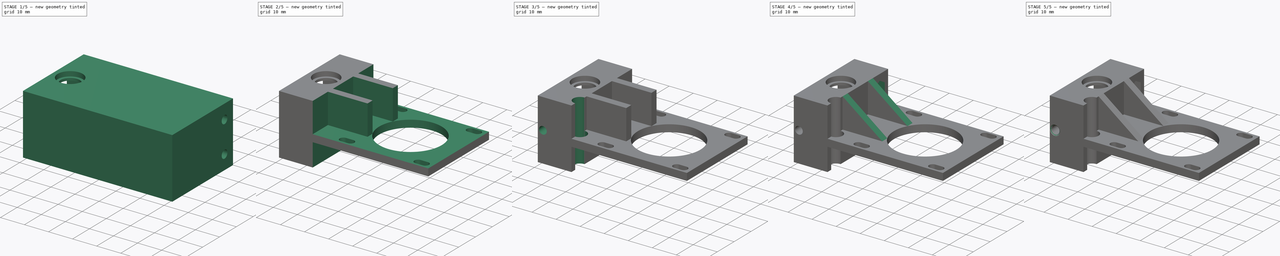
[diagram: build sequence overview — one tinted view per stage of 5, left to right]
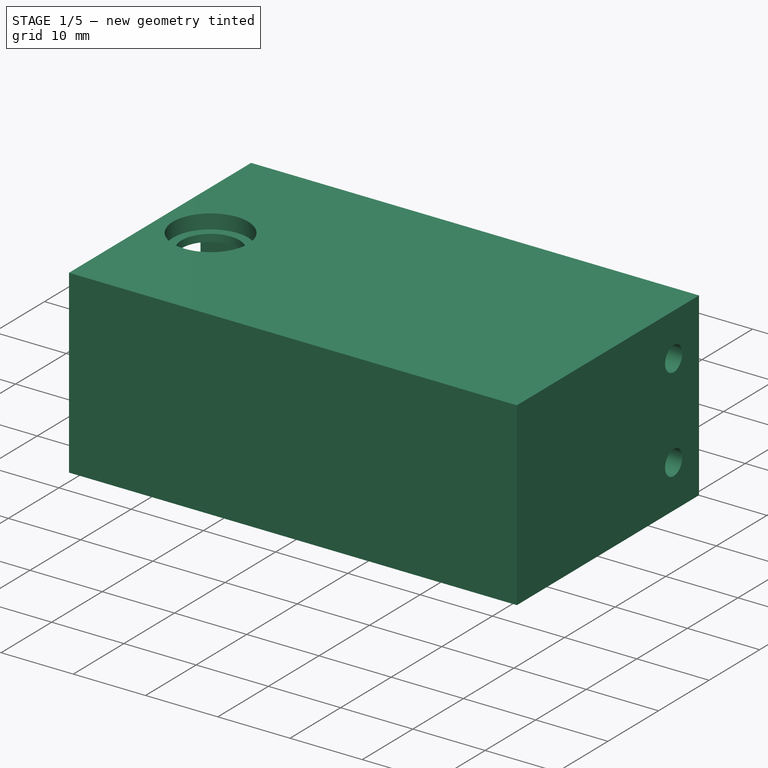
[diagram: stage 1 of 5 — iso view after this stage's code; geometry added in this stage tinted green]
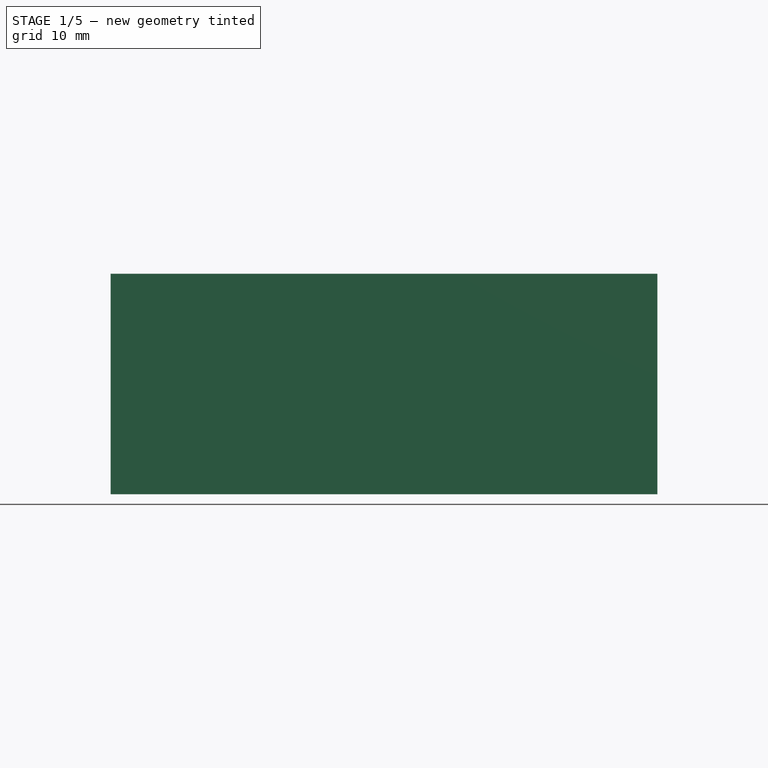
[diagram: stage 1 of 5 — front view after this stage's code; geometry added in this stage tinted green]
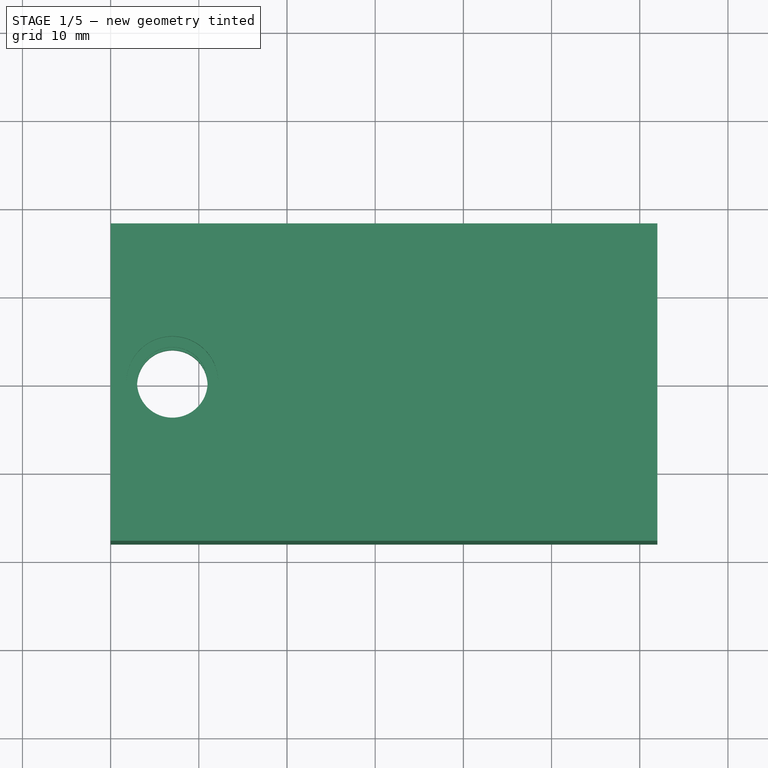
[diagram: stage 1 of 5 — top view after this stage's code; geometry added in this stage tinted green]
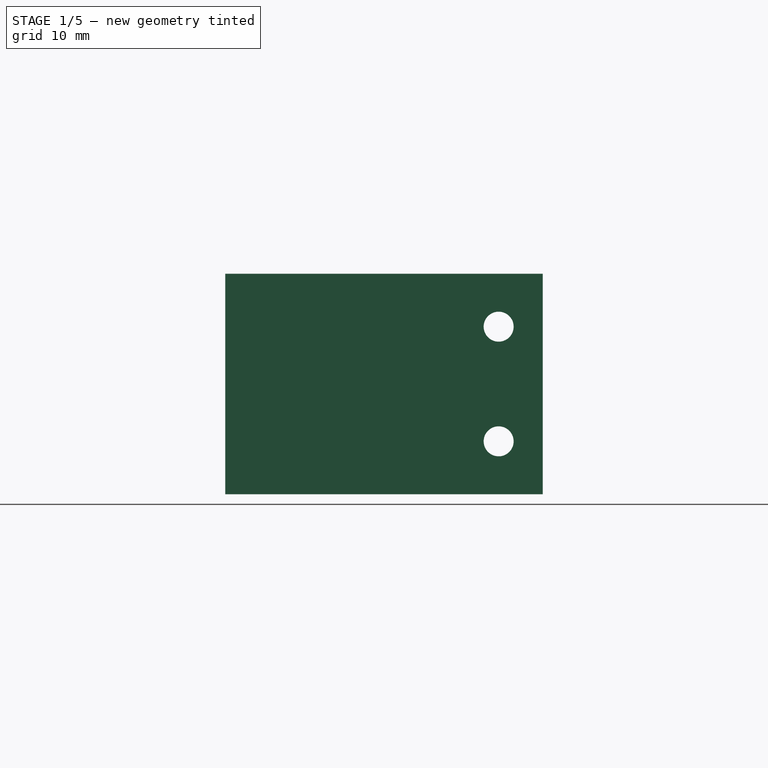
[diagram: stage 1 of 5 — right view after this stage's code; geometry added in this stage tinted green]
FCSTD DOCUMENT  (FreeCAD 0.18R13661 (Git))
Label: Base_623zz+M3
License: All rights reserved
LicenseURL: http://en.wikipedia.org/wiki/All_rights_reserved
objects: Sketcher::SketchObject×16, PartDesign::Pocket×13, PartDesign::Plane×12, PartDesign::Chamfer×4, PartDesign::Pad×3, PartDesign::Body×1
note: 65 computed .brp shape members not serialized (recipe doc carries the construction recipe); baked Part::Feature solids carry a one-line shape summary decoded from their .brp

FEATURE [Sketcher::SketchObject] Sketch  label="BaseSketch"
  AttachmentOffset = pos=(0,0,0) rot=(0,0,1;1.5708rad)
  MapMode = 5
  Placement = pos=(0,0,0) rot=(0.707107,0,0.707107;3.14159rad)
  Support = -> [YZ_Plane]
  sketch-geometry (12):
    g0: Circle [constr] CenterX=0 CenterY=0 CenterZ=0 NormalX=0 NormalY=0 NormalZ=1 AngleXU=0 Radius=21.9146
    g1: LineSegment StartX=-12.5 StartY=18 StartZ=0 EndX=-12.5 EndY=0 EndZ=0
    g2: LineSegment StartX=-12.5 StartY=0 StartZ=0 EndX=-12.5 EndY=-18 EndZ=0
    g3: LineSegment StartX=12.5 StartY=-18 StartZ=0 EndX=12.5 EndY=0 EndZ=0
    g4: LineSegment StartX=12.5 StartY=0 StartZ=0 EndX=12.5 EndY=18 EndZ=0
    g5: LineSegment StartX=-12.5 StartY=18 StartZ=0 EndX=0 EndY=18 EndZ=0
    g6: LineSegment StartX=0 StartY=18 StartZ=0 EndX=12.5 EndY=18 EndZ=0
    g7: LineSegment StartX=12.5 StartY=-18 StartZ=0 EndX=0 EndY=-18 EndZ=0
    g8: LineSegment StartX=0 StartY=-18 StartZ=0 EndX=-12.5 EndY=-18 EndZ=0
    g9: Circle [constr] CenterX=0 CenterY=0 CenterZ=0 NormalX=0 NormalY=0 NormalZ=1 AngleXU=0 Radius=14.5344
    g10: Circle CenterX=6.5 CenterY=-13 CenterZ=0 NormalX=0 NormalY=0 NormalZ=1 AngleXU=0 Radius=1.7
    g11: Circle CenterX=-6.5 CenterY=-13 CenterZ=0 NormalX=0 NormalY=0 NormalZ=1 AngleXU=0 Radius=1.7
  constraints (34):
    c: Coincident(g0,g-1)
    c: PointOnObject(g1,g0)
    c: PointOnObject(g1,g-1)
    c: Coincident(g2,g1)
    c: PointOnObject(g2,g0)
    c: PointOnObject(g3,g0)
    c: PointOnObject(g3,g-1)
    c: Coincident(g4,g3)
    c: PointOnObject(g4,g0)
    c: Coincident(g5,g1)
    c: PointOnObject(g5,g-2)
    c: Coincident(g6,g5)
    c: Coincident(g6,g4)
    c: Coincident(g7,g3)
    c: PointOnObject(g7,g-2)
    c: Coincident(g8,g7)
    c: Coincident(g8,g2)
    c: Vertical(g1)
    c: Vertical(g2)
    c: Horizontal(g5)
    c: Horizontal(g6)
    c: Vertical(g4)
    c: Vertical(g3)
    c: Horizontal(g7)
    c: Distance(g1,g2) = 36
    c: Distance(g1,g4) = 25
    c: Coincident(g9,g-1)
    c: PointOnObject(g10,g9)
    c: PointOnObject(g11,g9)
    c: Equal(g10,g11)
    c: Symmetric(g10,g11,g-2)
    c: DistanceY(g3,g10) = 5
    c: DistanceX(g10,g3) = 6
    c: Radius(g10) = 1.7
FEATURE [PartDesign::Pad] Pad  label="BasePad"
  Length = 62
  Length2 = 100
  Placement = pos=(0,0,0) rot=(0.57735,0.57735,0.57735;2.0944rad)
  Profile = -> Sketch
  Type = 0
FEATURE [Sketcher::SketchObject] Sketch001  label="BearingsClampSketch"
  MapMode = 5
  Support = -> [XY_Plane]
  sketch-geometry (1):
    g0: Circle CenterX=7 CenterY=0 CenterZ=0 NormalX=0 NormalY=0 NormalZ=1 AngleXU=0 Radius=4
  constraints (3):
    c: PointOnObject(g0,g-1)
    c: Radius(g0) = 4
    c: Distance(g-1,g0) = 7
FEATURE [PartDesign::Pocket] Pocket  label="BearingsClampPocket"
  BaseFeature = -> Pad
  Length = 5
  Length2 = 100
  Midplane = true
  Placement = pos=(0,0,0) rot=(0.57735,0.57735,0.57735;2.0944rad)
  Profile = -> Sketch001
  Type = 1
FEATURE [Sketcher::SketchObject] Sketch002  label="FeedPulleyNotchSketch"
  ExternalGeometry = -> [Sketch001]
  MapMode = 5
  Support = -> [XY_Plane]
  sketch-geometry (8):
    g0: LineSegment [constr] StartX=11 StartY=0 StartZ=0 EndX=12 EndY=0 EndZ=0
    g1: LineSegment StartX=0 StartY=8 StartZ=0 EndX=0 EndY=-8 EndZ=0
    g2: LineSegment StartX=0 StartY=8 StartZ=0 EndX=10 EndY=8 EndZ=0
    g3: LineSegment StartX=0 StartY=-8 StartZ=0 EndX=10 EndY=-8 EndZ=0
    g4: ArcOfCircle CenterX=10 CenterY=-6 CenterZ=0 NormalX=0 NormalY=0 NormalZ=1 AngleXU=0 Radius=2 StartAngle=4.71239 EndAngle=6.28319
    g5: ArcOfCircle CenterX=10 CenterY=6 CenterZ=0 NormalX=0 NormalY=0 NormalZ=1 AngleXU=0 Radius=2 StartAngle=0 EndAngle=1.5708
    g6: LineSegment StartX=12 StartY=6 StartZ=0 EndX=12 EndY=-6 EndZ=0
    g7: LineSegment [constr] StartX=10 StartY=6 StartZ=0 EndX=12 EndY=6 EndZ=0
  constraints (24):
    c: PointOnObject(g0,g-1)
    c: PointOnObject(g0,g-3)
    c: Distance(g0) = 1
    c: Distance(g5,g4) = 12
    c: PointOnObject(g1,g-2)
    c: PointOnObject(g1,g-2)
    c: Coincident(g2,g1)
    c: Coincident(g3,g1)
    c: Coincident(g4,g3)
    c: Coincident(g5,g2)
    c: Symmetric(g5,g4,g-1)
    c: Coincident(g6,g5)
    c: Coincident(g6,g4)
    c: PointOnObject(g0,g-1)
    c: PointOnObject(g0,g6)
    c: Symmetric(g5,g4,g-1)
    c: Symmetric(g1,g1,g-1)
    c: Symmetric(g2,g3,g-1)
    c: Horizontal(g2)
    c: Radius(g5) = 2
    c: Angle(g5) = 1.5708
    c: Coincident(g7,g5)
    c: Coincident(g7,g5)
    c: Perpendicular(g6,g7)
FEATURE [PartDesign::Pocket] Pocket001  label="FeedPulleyNotchPocket"
  BaseFeature = -> Pocket
  Length = 19
  Length2 = 100
  Midplane = true
  Placement = pos=(0,0,0) rot=(0.57735,0.57735,0.57735;2.0944rad)
  Profile = -> Sketch002
  Type = 0
FEATURE [PartDesign::Plane] DatumPlane  label="Bearing1NotchPlane"
  MapMode = 6
  Placement = pos=(-1e-12,0,12.5) rot=(0,0,-1;1.5708rad)
  Support = -> [Pocket001]
FEATURE [Sketcher::SketchObject] Sketch003  label="Bearing1NotchSketch"
  ExternalGeometry = -> [Pocket001]
  MapMode = 5
  Placement = pos=(-1e-12,0,12.5) rot=(0,0,-1;1.5708rad)
  Support = -> [DatumPlane]
  sketch-geometry (1):
    g0: Circle CenterX=1e-12 CenterY=7 CenterZ=0 NormalX=0 NormalY=0 NormalZ=1 AngleXU=0 Radius=5.2
  constraints (2):
    c: Coincident(g0,g-3)
    c: Radius(g0) = 5.2
FEATURE [PartDesign::Pocket] Pocket002  label="Bearing1NotchPocket"
  BaseFeature = -> Pocket001
  Length = 2
  Length2 = 100
  Placement = pos=(0,0,0) rot=(0.57735,0.57735,0.57735;2.0944rad)
  Profile = -> Sketch003
  Type = 0
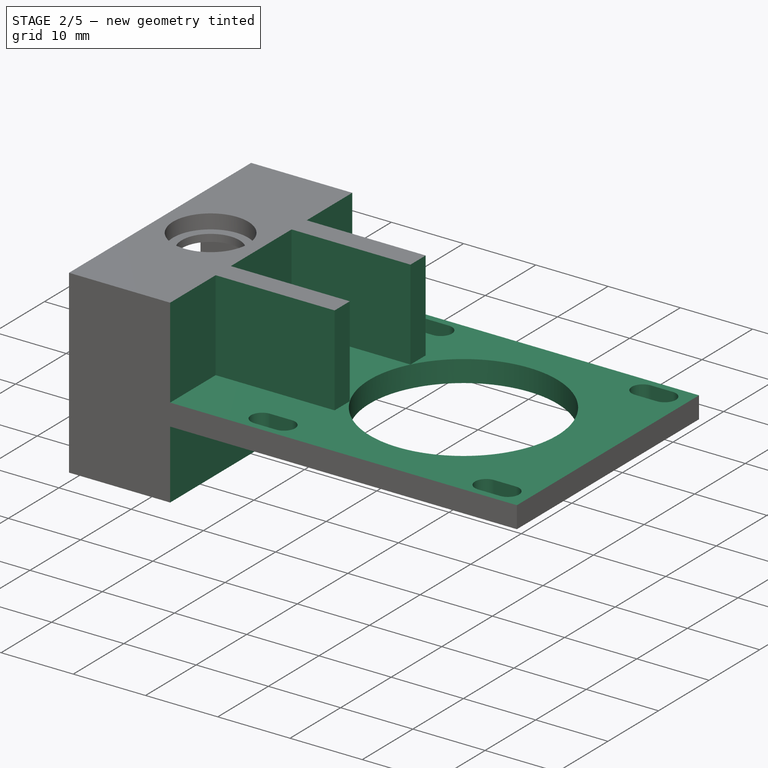
[diagram: stage 2 of 5 — iso view after this stage's code; geometry added in this stage tinted green]
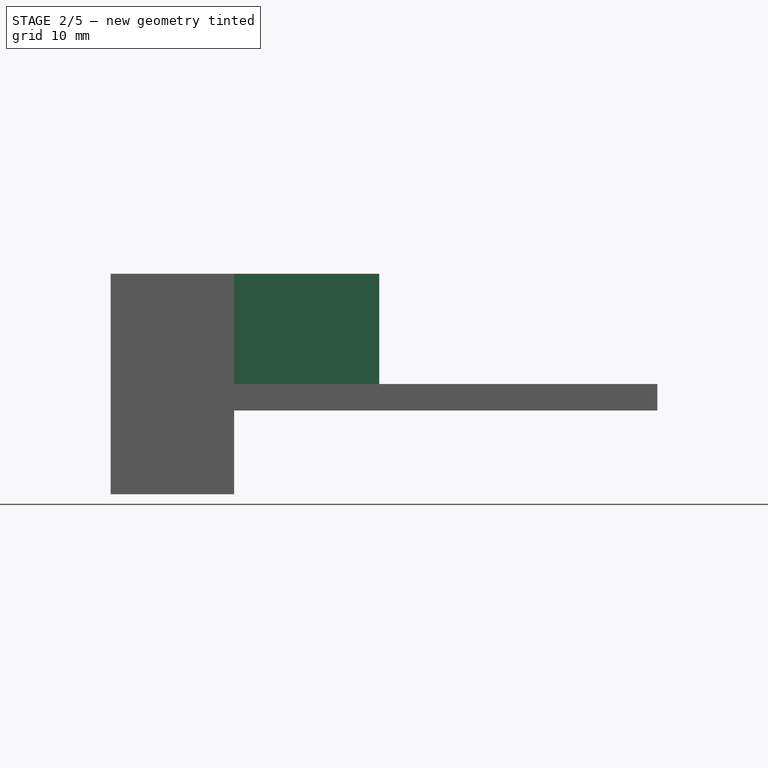
[diagram: stage 2 of 5 — front view after this stage's code; geometry added in this stage tinted green]
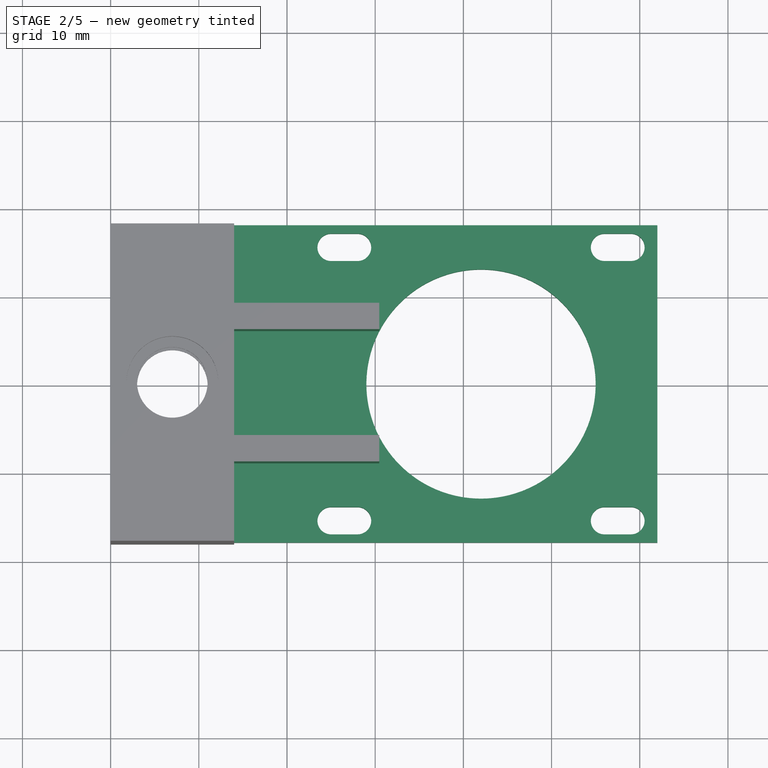
[diagram: stage 2 of 5 — top view after this stage's code; geometry added in this stage tinted green]
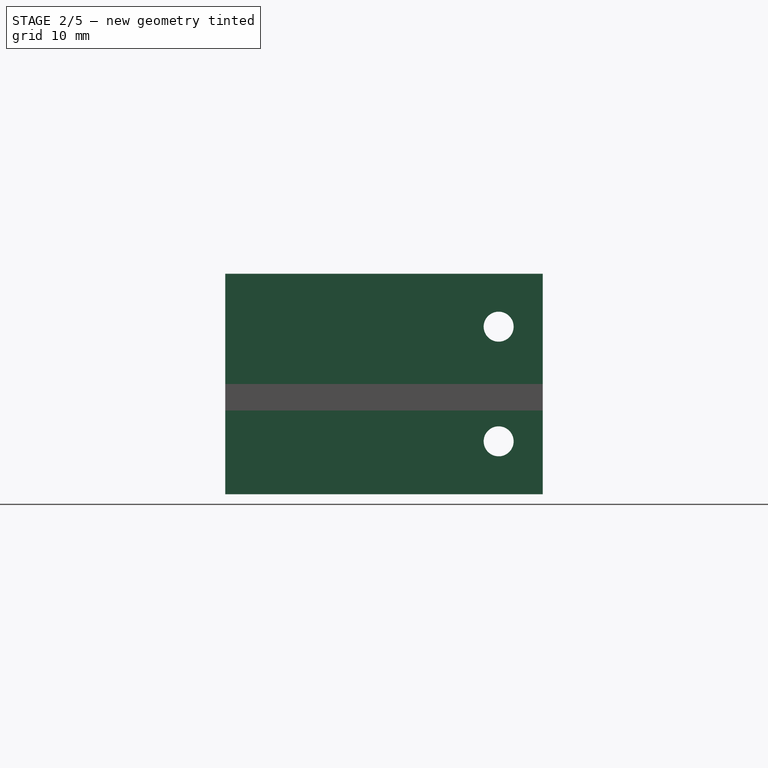
[diagram: stage 2 of 5 — right view after this stage's code; geometry added in this stage tinted green]
FEATURE [PartDesign::Plane] DatumPlane001  label="Bearing2NotchPlane"
  MapMode = 6
  Placement = pos=(1e-12,0,-12.5) rot=(0.707107,0.707107,0;3.14159rad)
  Support = -> [Pocket001]
FEATURE [Sketcher::SketchObject] Sketch004  label="Bearing2NotchSketch"
  ExternalGeometry = -> [Pocket001]
  MapMode = 5
  Placement = pos=(1e-12,0,-12.5) rot=(0.707107,0.707107,0;3.14159rad)
  Support = -> [DatumPlane001]
  sketch-geometry (1):
    g0: Circle CenterX=-1e-12 CenterY=7 CenterZ=0 NormalX=0 NormalY=0 NormalZ=1 AngleXU=0 Radius=5.2
  constraints (2):
    c: Coincident(g0,g-3)
    c: Radius(g0) = 5.2
FEATURE [PartDesign::Pocket] Pocket003  label="Bearing2NotchPocket"
  BaseFeature = -> Pocket002
  Length = 2
  Length2 = 100
  Placement = pos=(0,0,0) rot=(0.57735,0.57735,0.57735;2.0944rad)
  Profile = -> Sketch004
  Type = 0
FEATURE [PartDesign::Plane] DatumPlane002  label="StepperClampingCut1Plane"
  AttachmentOffset = pos=(0,0,-12.5) rot=(0,0,1;0rad)
  MapMode = 6
  Placement = pos=(0,0,0) rot=(0.707107,0.707107,0;3.14159rad)
  Support = -> [Pocket003]
FEATURE [Sketcher::SketchObject] Sketch005  label="StepperClampingCut1Sketch"
  ExternalGeometry = -> [Pocket003]
  MapMode = 5
  Placement = pos=(0,0,0) rot=(0.707107,0.707107,0;3.14159rad)
  Support = -> [DatumPlane002]
  sketch-geometry (17):
    g0: LineSegment StartX=0 StartY=14 StartZ=0 EndX=6 EndY=14 EndZ=0
    g1: LineSegment StartX=0 StartY=14 StartZ=0 EndX=-6 EndY=14 EndZ=0
    g2: LineSegment [constr] StartX=-1e-12 StartY=7 StartZ=0 EndX=0 EndY=42 EndZ=0
    g3: LineSegment StartX=6 StartY=14 StartZ=0 EndX=6 EndY=30.4674 EndZ=0
    g4: Circle [constr] CenterX=0 CenterY=42 CenterZ=0 NormalX=0 NormalY=0 NormalZ=1 AngleXU=0 Radius=13
    g5: LineSegment StartX=-6 StartY=14 StartZ=0 EndX=-6 EndY=30.4674 EndZ=0
    g6: LineSegment StartX=6 StartY=30.4674 StartZ=0 EndX=9 EndY=30.4674 EndZ=0
    g7: LineSegment StartX=-6 StartY=30.4674 StartZ=0 EndX=-9 EndY=30.4674 EndZ=0
    g8: LineSegment StartX=9 StartY=30.4674 StartZ=0 EndX=9 EndY=14 EndZ=0
    g9: LineSegment StartX=-9 StartY=30.4674 StartZ=0 EndX=-9 EndY=14 EndZ=0
    g10: LineSegment [constr] StartX=0 StartY=14 StartZ=0 EndX=18 EndY=14 EndZ=0
    g11: LineSegment [constr] StartX=0 StartY=14 StartZ=0 EndX=-18 EndY=14 EndZ=0
    g12: LineSegment StartX=9 StartY=14 StartZ=0 EndX=18 EndY=14 EndZ=0
    g13: LineSegment StartX=-9 StartY=14 StartZ=0 EndX=-18 EndY=14 EndZ=0
    g14: LineSegment StartX=18 StartY=14 StartZ=0 EndX=18 EndY=62 EndZ=0
    g15: LineSegment StartX=18 StartY=62 StartZ=0 EndX=-18 EndY=62 EndZ=0
    g16: LineSegment StartX=-18 StartY=62 StartZ=0 EndX=-18 EndY=14 EndZ=0
  constraints (46):
    c: PointOnObject(g0,g-2)
    c: Coincident(g1,g0)
    c: Symmetric(g0,g-1,g-3)
    c: Coincident(g2,g-3)
    c: PointOnObject(g2,g-2)
    c: Distance(g2) = 35
    c: Equal(g0,g1)
    c: Coincident(g3,g0)
    c: Vertical(g3)
    c: Coincident(g4,g2)
    c: Radius(g4) = 13
    c: PointOnObject(g3,g4)
    c: Coincident(g5,g1)
    c: PointOnObject(g5,g4)
    c: Vertical(g5)
    c: Coincident(g6,g3)
    c: Horizontal(g6)
    c: Coincident(g7,g5)
    c: Horizontal(g7)
    c: Equal(g6,g7)
    c: Coincident(g8,g6)
    c: Vertical(g8)
    c: Coincident(g9,g7)
    c: Vertical(g9)
    c: Coincident(g10,g0)
    c: PointOnObject(g10,g-4)
    c: Horizontal(g10)
    c: PointOnObject(g0,g10)
    c: Coincident(g11,g0)
    c: PointOnObject(g11,g-5)
    c: Horizontal(g11)
    c: PointOnObject(g1,g11)
    c: PointOnObject(g8,g10)
    c: PointOnObject(g9,g11)
    c: Coincident(g12,g8)
    c: Coincident(g12,g10)
    c: Coincident(g13,g9)
    c: Coincident(g13,g11)
    c: Coincident(g14,g10)
    c: Coincident(g14,g-7)
    c: Coincident(g15,g14)
    c: Coincident(g15,g-6)
    c: Coincident(g16,g15)
    c: Coincident(g16,g11)
    c: Distance(g7,g5) = 3
    c: Distance(g9,g11) = 9
FEATURE [PartDesign::Pocket] Pocket004  label="StepperClampingCut1Pocket"
  BaseFeature = -> Pocket003
  Length = 5
  Length2 = 100
  Placement = pos=(0,0,0) rot=(0.57735,0.57735,0.57735;2.0944rad)
  Profile = -> Sketch005
  Type = 1
FEATURE [PartDesign::Plane] DatumPlane003  label="StepperClampingCut2Plane"
  MapMode = 6
  Placement = pos=(1e-12,0,-12.5) rot=(0.707107,0.707107,0;3.14159rad)
  Support = -> [Pocket004]
FEATURE [Sketcher::SketchObject] Sketch006  label="StepperClampingCut2Sketch"
  ExternalGeometry = -> [Pocket003]
  MapMode = 5
  Placement = pos=(1e-12,0,-12.5) rot=(0.707107,0.707107,0;3.14159rad)
  Support = -> [DatumPlane003]
  sketch-geometry (5):
    g0: LineSegment StartX=0 StartY=14 StartZ=0 EndX=18 EndY=14 EndZ=0
    g1: LineSegment StartX=18 StartY=14 StartZ=0 EndX=18 EndY=62 EndZ=0
    g2: LineSegment StartX=18 StartY=62 StartZ=0 EndX=-18 EndY=62 EndZ=0
    g3: LineSegment StartX=-18 StartY=62 StartZ=0 EndX=-18 EndY=14 EndZ=0
    g4: LineSegment StartX=0 StartY=14 StartZ=0 EndX=-18 EndY=14 EndZ=0
  constraints (13):
    c: PointOnObject(g0,g-2)
    c: Symmetric(g0,g-1,g-3)
    c: Coincident(g1,g0)
    c: Coincident(g1,g-6)
    c: Coincident(g2,g1)
    c: Coincident(g2,g-5)
    c: Coincident(g3,g2)
    c: Coincident(g4,g0)
    c: Coincident(g4,g3)
    c: Horizontal(g4)
    c: Horizontal(g0)
    c: PointOnObject(g0,g-7)
    c: PointOnObject(g3,g-4)
FEATURE [PartDesign::Pocket] Pocket005  label="StepperClampingCut2Pocket"
  BaseFeature = -> Pocket004
  Length = 9.5
  Length2 = 100
  Placement = pos=(0,0,0) rot=(0.57735,0.57735,0.57735;2.0944rad)
  Profile = -> Sketch006
  Type = 0
FEATURE [Sketcher::SketchObject] Sketch007  label="StepperClampingCut3Sketch"
  ExternalGeometry = -> [Pocket005]
  MapMode = 5
  Placement = pos=(1e-12,0,-12.5) rot=(0.707107,0.707107,0;3.14159rad)
  Support = -> [DatumPlane003]
  sketch-geometry (27):
    g0: LineSegment [constr] StartX=-1e-12 StartY=7 StartZ=0 EndX=0 EndY=42 EndZ=0
    g1: Circle CenterX=0 CenterY=42 CenterZ=0 NormalX=0 NormalY=0 NormalZ=1 AngleXU=0 Radius=13
    g2: LineSegment [constr] StartX=15.5 StartY=26.5 StartZ=0 EndX=15.5 EndY=57.5 EndZ=0
    g3: LineSegment [constr] StartX=15.5 StartY=57.5 StartZ=0 EndX=-15.5 EndY=57.5 EndZ=0
    g4: LineSegment [constr] StartX=-15.5 StartY=57.5 StartZ=0 EndX=-15.5 EndY=26.5 EndZ=0
    g5: LineSegment [constr] StartX=-15.5 StartY=26.5 StartZ=0 EndX=15.5 EndY=26.5 EndZ=0
    g6: Circle [constr] CenterX=0 CenterY=42 CenterZ=0 NormalX=0 NormalY=0 NormalZ=1 AngleXU=0 Radius=21.9203
    g7: LineSegment [constr] StartX=-15.5 StartY=57.5 StartZ=0 EndX=-15.5 EndY=59 EndZ=0
    g8: LineSegment [constr] StartX=15.5 StartY=57.5 StartZ=0 EndX=15.5 EndY=59 EndZ=0
    g9: LineSegment [constr] StartX=-15.5 StartY=26.5 StartZ=0 EndX=-15.5 EndY=25 EndZ=0
    g10: LineSegment [constr] StartX=15.5 StartY=26.5 StartZ=0 EndX=15.5 EndY=25 EndZ=0
    g11: ArcOfCircle CenterX=-15.5 CenterY=59 CenterZ=0 NormalX=0 NormalY=0 NormalZ=1 AngleXU=0 Radius=1.55 StartAngle=-1.9e-11 EndAngle=3.14159
    g12: ArcOfCircle CenterX=-15.5 CenterY=56 CenterZ=0 NormalX=0 NormalY=0 NormalZ=1 AngleXU=0 Radius=1.55 StartAngle=3.14159 EndAngle=6.28319
    g13: LineSegment StartX=-17.05 StartY=59 StartZ=0 EndX=-17.05 EndY=56 EndZ=0
    g14: LineSegment StartX=-13.95 StartY=59 StartZ=0 EndX=-13.95 EndY=56 EndZ=0
    g15: ArcOfCircle CenterX=15.5 CenterY=59 CenterZ=0 NormalX=0 NormalY=0 NormalZ=1 AngleXU=0 Radius=1.55 StartAngle=0 EndAngle=3.14159
    g16: ArcOfCircle CenterX=15.5 CenterY=56 CenterZ=0 NormalX=0 NormalY=0 NormalZ=1 AngleXU=0 Radius=1.55 StartAngle=3.14159 EndAngle=6.28319
    g17: LineSegment StartX=13.95 StartY=59 StartZ=0 EndX=13.95 EndY=56 EndZ=0
    g18: LineSegment StartX=17.05 StartY=59 StartZ=0 EndX=17.05 EndY=56 EndZ=0
    g19: ArcOfCircle CenterX=15.5 CenterY=25 CenterZ=0 NormalX=0 NormalY=0 NormalZ=1 AngleXU=0 Radius=1.55 StartAngle=3.14159 EndAngle=6.28319
    g20: ArcOfCircle CenterX=15.5 CenterY=28 CenterZ=0 NormalX=0 NormalY=0 NormalZ=1 AngleXU=0 Radius=1.55 StartAngle=0 EndAngle=3.14159
    g21: LineSegment StartX=17.05 StartY=25 StartZ=0 EndX=17.05 EndY=28 EndZ=0
    g22: LineSegment StartX=13.95 StartY=25 StartZ=0 EndX=13.95 EndY=28 EndZ=0
    g23: ArcOfCircle CenterX=-15.5 CenterY=25 CenterZ=0 NormalX=0 NormalY=0 NormalZ=1 AngleXU=0 Radius=1.55 StartAngle=3.14159 EndAngle=6.28319
    g24: ArcOfCircle CenterX=-15.5 CenterY=28 CenterZ=0 NormalX=0 NormalY=0 NormalZ=1 AngleXU=0 Radius=1.55 StartAngle=0 EndAngle=3.14159
    g25: LineSegment StartX=-13.95 StartY=25 StartZ=0 EndX=-13.95 EndY=28 EndZ=0
    g26: LineSegment StartX=-17.05 StartY=25 StartZ=0 EndX=-17.05 EndY=28 EndZ=0
  constraints (65):
    c: Coincident(g0,g-3)
    c: PointOnObject(g0,g-2)
    c: Distance(g0) = 35
    c: Coincident(g1,g0)
    c: Radius(g1) = 13
    c: Coincident(g2,g3)
    c: Coincident(g3,g4)
    c: Coincident(g5,g2)
    c: Equal(g2,g3)
    c: Equal(g2,g4)
    c: Equal(g2,g5)
    c: PointOnObject(g4,g6)
    c: PointOnObject(g5,g6)
    c: Coincident(g6,g0)
    c: Horizontal(g3)
    c: Distance(g3) = 31
    c: Coincident(g7,g3)
    c: Coincident(g8,g2)
    c: Coincident(g9,g4)
    c: Coincident(g10,g2)
    c: Symmetric(g8,g7,g-2)
    c: Symmetric(g10,g9,g-2)
    c: Vertical(g7)
    c: Vertical(g9)
    c: Coincident(g5,g4)
    c: Distance(g7) = 1.5
    c: Distance(g9) = 1.5
    c: PointOnObject(g3,g6)
    c: PointOnObject(g2,g6)
    c: Tangent(g11,g14) = 1.5708
    c: Tangent(g11,g13) = -1.5708
    c: Tangent(g13,g12) = -1.5708
    c: Tangent(g14,g12) = 1.5708
    c: Vertical(g13)
    c: Equal(g11,g12)
    c: Coincident(g11,g7)
    c: Tangent(g15,g18) = 1.5708
    c: Tangent(g15,g17) = -1.5708
    c: Tangent(g17,g16) = -1.5708
    c: Tangent(g18,g16) = 1.5708
    c: Vertical(g17)
    c: Equal(g15,g16)
    c: Coincident(g15,g8)
    c: Tangent(g19,g22) = 1.5708
    c: Tangent(g19,g21) = -1.5708
    c: Tangent(g21,g20) = -1.5708
    c: Tangent(g22,g20) = 1.5708
    c: Vertical(g21)
    c: Equal(g19,g20)
    c: Coincident(g19,g10)
    c: Tangent(g23,g26) = 1.5708
    c: Tangent(g23,g25) = -1.5708
    c: Tangent(g25,g24) = -1.5708
    c: Tangent(g26,g24) = 1.5708
    c: Vertical(g25)
    c: Equal(g23,g24)
    c: Coincident(g23,g9)
    c: Equal(g14,g18)
    c: Equal(g18,g21)
    c: Equal(g21,g25)
    c: Equal(g11,g15)
    c: Equal(g15,g20)
    c: Equal(g20,g24)
    c: Radius(g11) = 1.55
    c: Distance(g12,g3) = 1.5
FEATURE [PartDesign::Pocket] Pocket006  label="StepperClampingCut3Pocket"
  BaseFeature = -> Pocket005
  Length = 5
  Length2 = 100
  Placement = pos=(0,0,0) rot=(0.57735,0.57735,0.57735;2.0944rad)
  Profile = -> Sketch007
  Type = 1
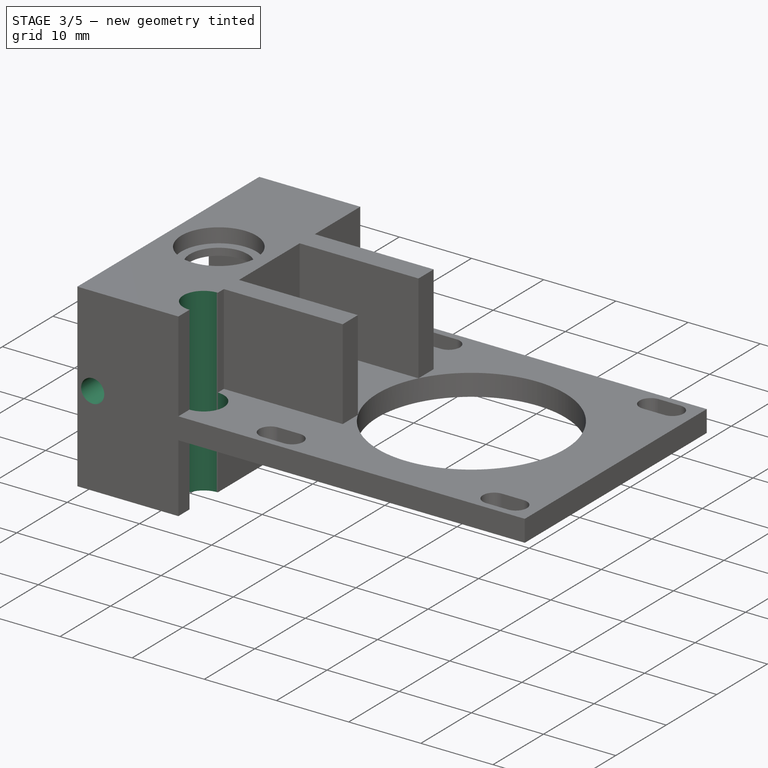
[diagram: stage 3 of 5 — iso view after this stage's code; geometry added in this stage tinted green]
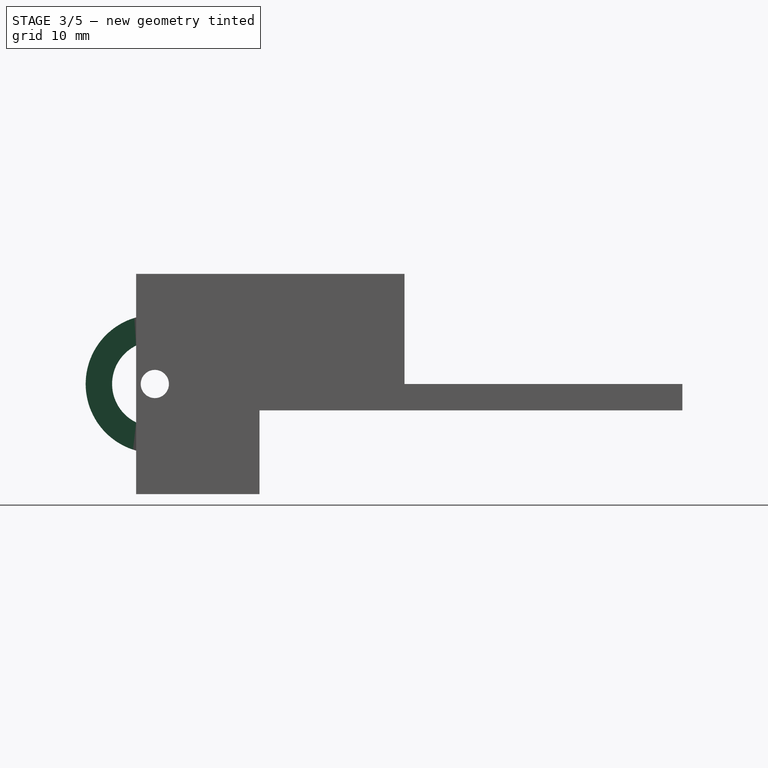
[diagram: stage 3 of 5 — front view after this stage's code; geometry added in this stage tinted green]
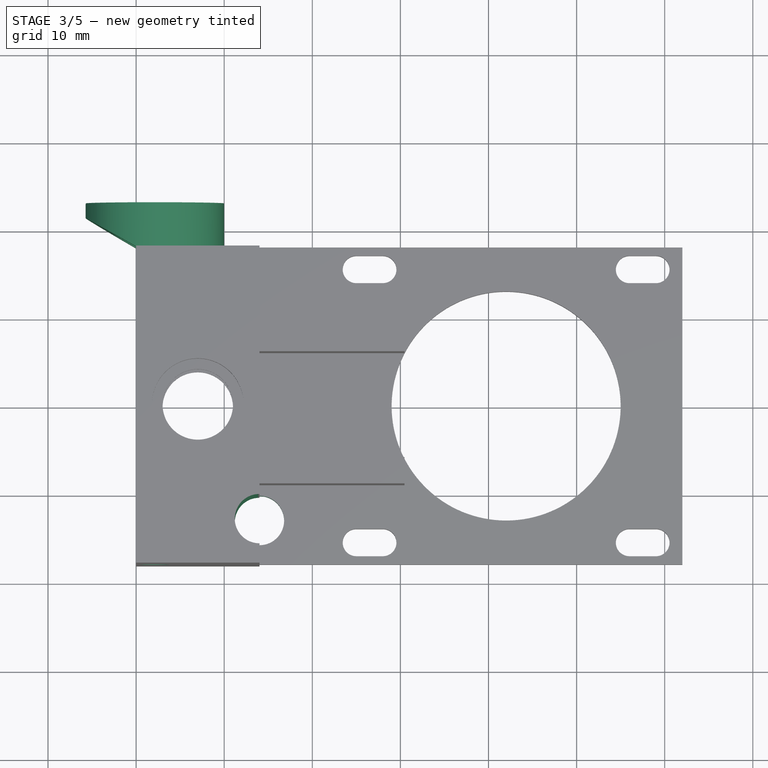
[diagram: stage 3 of 5 — top view after this stage's code; geometry added in this stage tinted green]
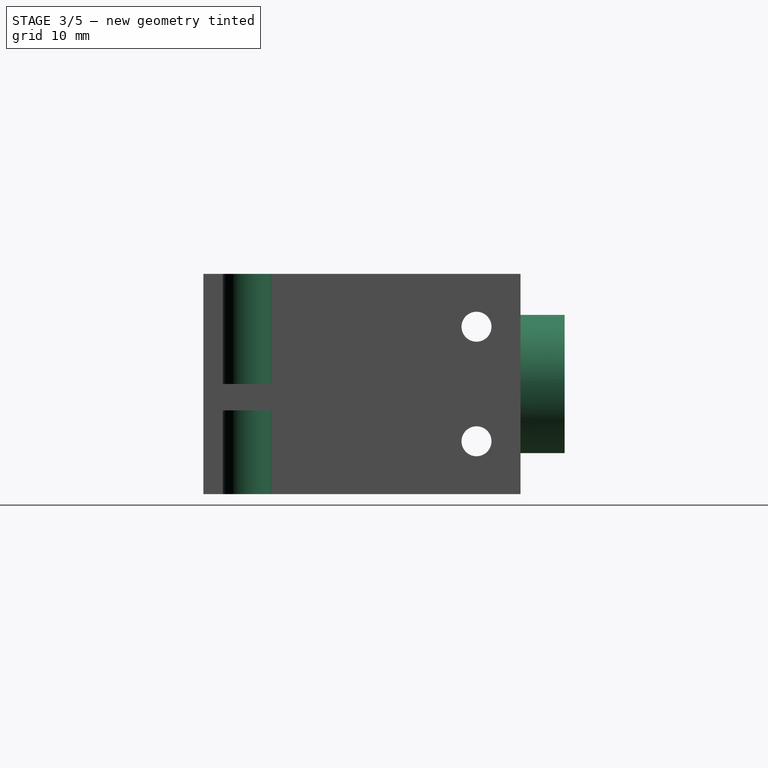
[diagram: stage 3 of 5 — right view after this stage's code; geometry added in this stage tinted green]
FEATURE [PartDesign::Plane] DatumPlane004  label="FilamentFeedingHolePlane"
  MapMode = 6
  Placement = pos=(-2e-12,-18,0) rot=(0.57735,0.57735,-0.57735;2.0944rad)
  Support = -> [Pocket006]
FEATURE [Sketcher::SketchObject] Sketch008  label="FilamentFeedingHoleSketch"
  MapMode = 5
  Placement = pos=(-2e-12,-18,0) rot=(0.57735,0.57735,-0.57735;2.0944rad)
  Support = -> [DatumPlane004]
  sketch-geometry (1):
    g0: Circle CenterX=0 CenterY=2.125 CenterZ=0 NormalX=0 NormalY=0 NormalZ=1 AngleXU=0 Radius=1.6
  constraints (3):
    c: PointOnObject(g0,g-2)
    c: Distance(g-1,g0) = 2.125
    c: Radius(g0) = 1.6
FEATURE [PartDesign::Pocket] Pocket007  label="FilamentFeedingHolePocket"
  BaseFeature = -> Pocket006
  Length = 5
  Length2 = 100
  Placement = pos=(0,0,0) rot=(0.57735,0.57735,0.57735;2.0944rad)
  Profile = -> Sketch008
  Type = 1
FEATURE [PartDesign::Plane] DatumPlane005  label="FittingClampPlane"
  MapMode = 6
  Placement = pos=(2e-12,18,0) rot=(0.57735,0.57735,0.57735;4.18879rad)
  Support = -> [Pocket007]
FEATURE [Sketcher::SketchObject] Sketch009  label="FittingClampSketch"
  ExternalGeometry = -> [Pocket007]
  MapMode = 5
  Placement = pos=(2e-12,18,0) rot=(0.57735,0.57735,0.57735;4.18879rad)
  Support = -> [DatumPlane005]
  sketch-geometry (2):
    g0: Circle CenterX=0 CenterY=2.125 CenterZ=0 NormalX=0 NormalY=0 NormalZ=1 AngleXU=0 Radius=4.85
    g1: Circle CenterX=0 CenterY=2.125 CenterZ=0 NormalX=0 NormalY=0 NormalZ=1 AngleXU=0 Radius=7.85
  constraints (4):
    c: Coincident(g0,g-3)
    c: Coincident(g1,g0)
    c: Radius(g0) = 4.85
    c: Radius(g1) = 7.85
FEATURE [PartDesign::Pad] Pad001  label="FittingClampPad"
  BaseFeature = -> Pocket007
  Length = 5
  Length2 = 100
  Placement = pos=(0,0,0) rot=(0.57735,0.57735,0.57735;2.0944rad)
  Profile = -> Sketch009
  Type = 0
FEATURE [PartDesign::Plane] DatumPlane006  label="ClipHolePlane"
  MapMode = 6
  Placement = pos=(14,-18,12.5) rot=(0,0,-1;1.5708rad)
  Support = -> [Pad001]
FEATURE [Sketcher::SketchObject] Sketch010  label="ClipHoleSketch"
  MapMode = 5
  Placement = pos=(14,-18,12.5) rot=(0,0,-1;1.5708rad)
  Support = -> [DatumPlane006]
  sketch-geometry (1):
    g0: Circle CenterX=-5 CenterY=0 CenterZ=0 NormalX=0 NormalY=0 NormalZ=1 AngleXU=0 Radius=2.8
  constraints (3):
    c: PointOnObject(g0,g-1)
    c: Radius(g0) = 2.8
    c: Distance(g-1,g0) = 5
FEATURE [PartDesign::Pocket] Pocket008  label="ClipHolePocket"
  BaseFeature = -> Pad001
  Length = 5
  Length2 = 100
  Placement = pos=(0,0,0) rot=(0.57735,0.57735,0.57735;2.0944rad)
  Profile = -> Sketch010
  Type = 1
FEATURE [PartDesign::Plane] DatumPlane007  label="FittingCutPlane"
  MapMode = 6
  Placement = pos=(1e-12,18,12.5) rot=(0,0,-1;1.5708rad)
  Support = -> [Pad001]
FEATURE [Sketcher::SketchObject] Sketch011  label="FittingCutSketch"
  MapMode = 5
  Placement = pos=(1e-12,18,12.5) rot=(0,0,-1;1.5708rad)
  Support = -> [DatumPlane007]
  sketch-geometry (4):
    g0: LineSegment StartX=0 StartY=0 StartZ=0 EndX=-4.6188 EndY=-8 EndZ=0
    g1: LineSegment StartX=-4.6188 StartY=-8 StartZ=0 EndX=7.6569 EndY=-8 EndZ=0
    g2: LineSegment StartX=7.6569 StartY=-8 StartZ=0 EndX=7.6569 EndY=0 EndZ=0
    g3: LineSegment StartX=7.6569 StartY=0 StartZ=0 EndX=0 EndY=0 EndZ=0
  constraints (10):
    c: Coincident(g0,g-1)
    c: Coincident(g1,g0)
    c: Horizontal(g1)
    c: Coincident(g2,g1)
    c: Vertical(g2)
    c: Coincident(g3,g2)
    c: Coincident(g3,g-1)
    c: Horizontal(g3)
    c: Distance(g2) = 8
    c: Angle(g0,g3) = 2.0944
FEATURE [PartDesign::Pocket] Pocket009  label="FittingCutSketchPocket"
  BaseFeature = -> Pocket008
  Length = 5
  Length2 = 100
  Placement = pos=(0,0,0) rot=(0.57735,0.57735,0.57735;2.0944rad)
  Profile = -> Sketch011
  Type = 1
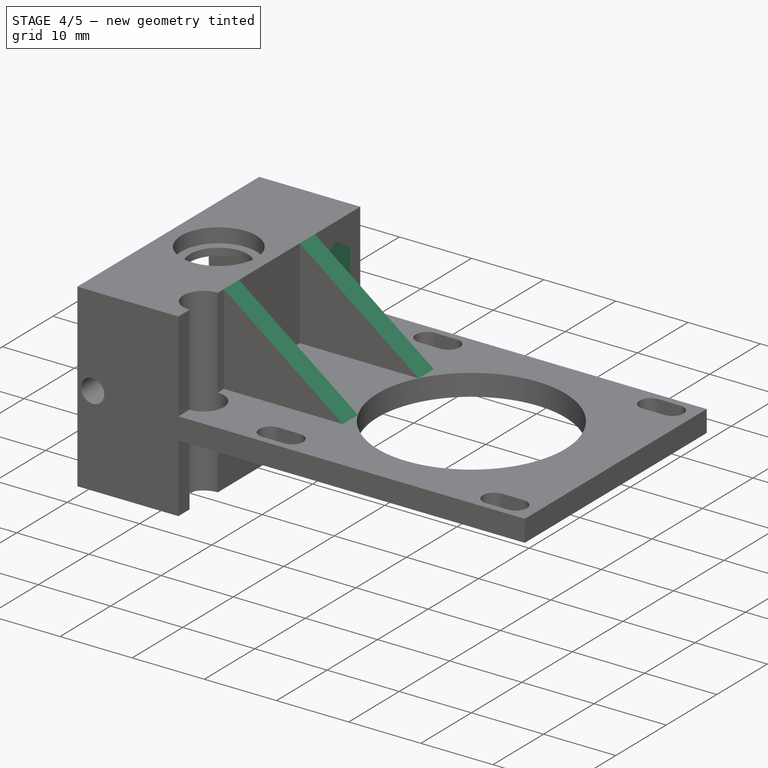
[diagram: stage 4 of 5 — iso view after this stage's code; geometry added in this stage tinted green]
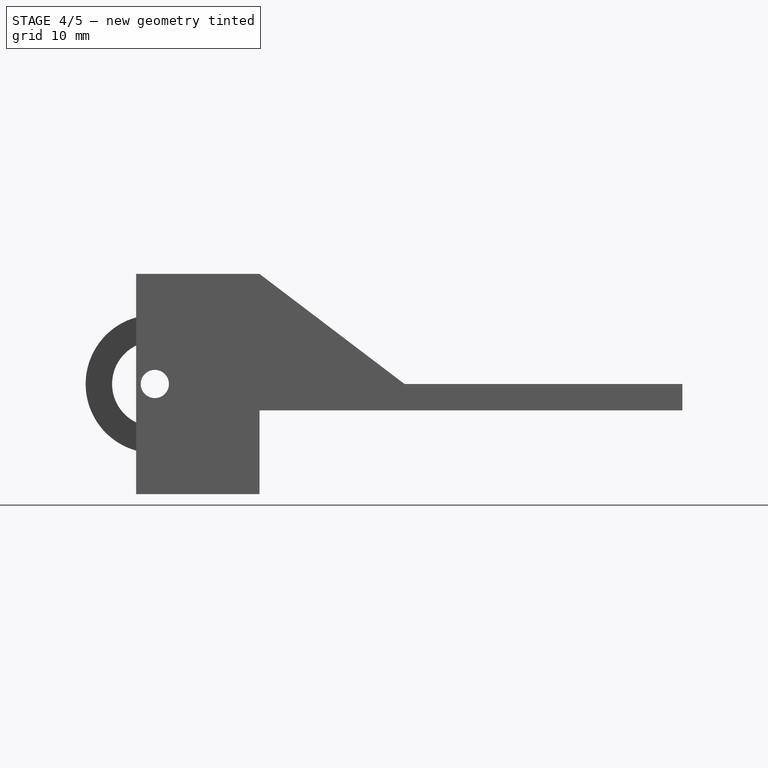
[diagram: stage 4 of 5 — front view after this stage's code; geometry added in this stage tinted green]
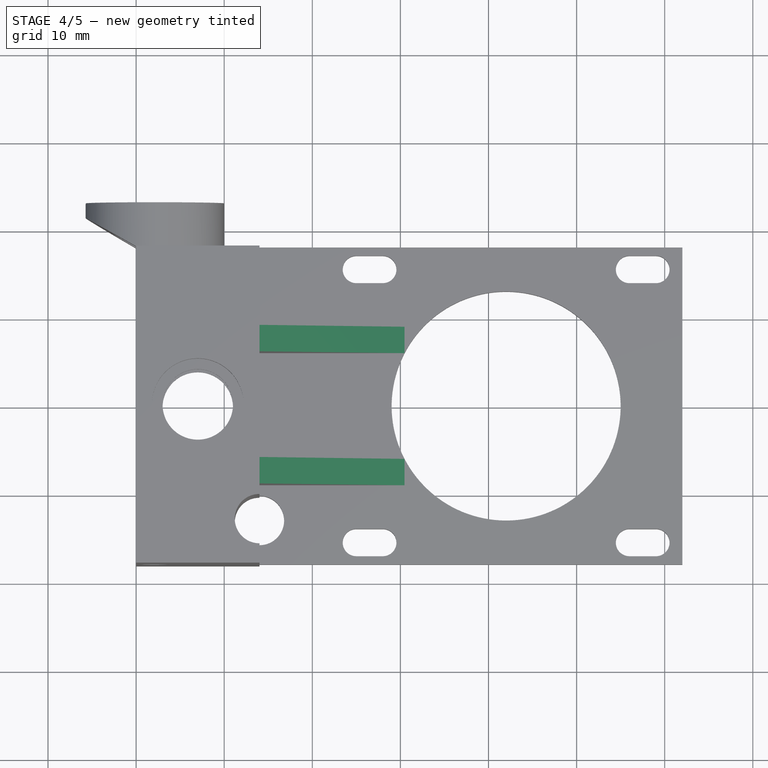
[diagram: stage 4 of 5 — top view after this stage's code; geometry added in this stage tinted green]
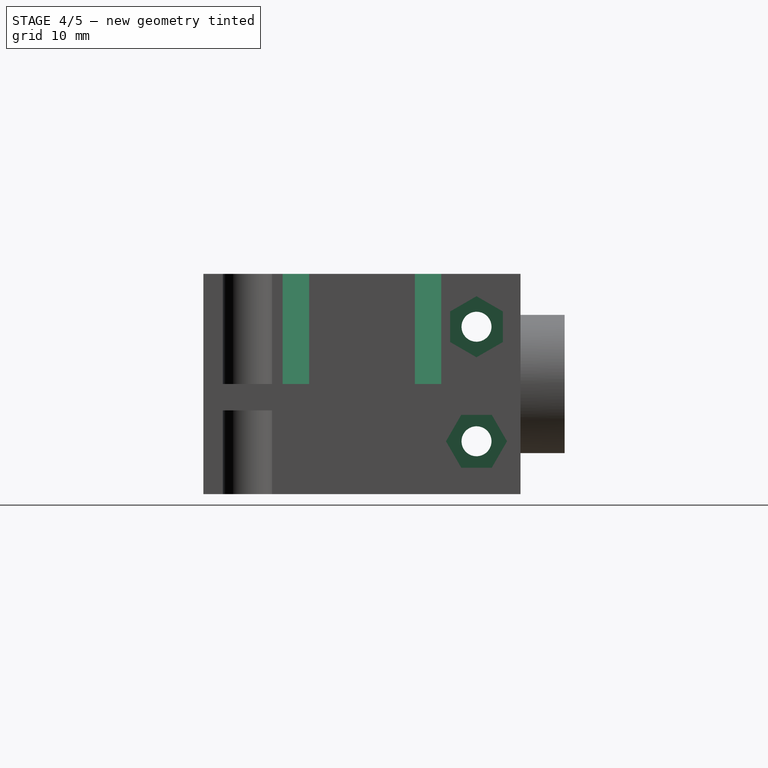
[diagram: stage 4 of 5 — right view after this stage's code; geometry added in this stage tinted green]
FEATURE [PartDesign::Plane] DatumPlane008  label="IdlerScrewNutsPlane"
  MapMode = 6
  Placement = pos=(14,18,12.5) rot=(0.57735,0.57735,0.57735;2.0944rad)
  Support = -> [Pocket009]
FEATURE [Sketcher::SketchObject] Sketch012  label="IdlerScrewNutsSketch"
  ExternalGeometry = -> [Pocket009]
  MapMode = 5
  Placement = pos=(14,18,12.5) rot=(0.57735,0.57735,0.57735;2.0944rad)
  Support = -> [DatumPlane008]
  sketch-geometry (14):
    g0: LineSegment StartX=-2 StartY=-7.73205 StartZ=0 EndX=-2 EndY=-4.26795 EndZ=0
    g1: LineSegment StartX=-2 StartY=-4.26795 StartZ=0 EndX=-5 EndY=-2.5359 EndZ=0
    g2: LineSegment StartX=-5 StartY=-2.5359 StartZ=0 EndX=-8 EndY=-4.26795 EndZ=0
    g3: LineSegment StartX=-8 StartY=-4.26795 StartZ=0 EndX=-8 EndY=-7.73205 EndZ=0
    g4: LineSegment StartX=-8 StartY=-7.73205 StartZ=0 EndX=-5 EndY=-9.4641 EndZ=0
    g5: LineSegment StartX=-5 StartY=-9.4641 StartZ=0 EndX=-2 EndY=-7.73205 EndZ=0
    g6: Circle [constr] CenterX=-5 CenterY=-6 CenterZ=0 NormalX=0 NormalY=0 NormalZ=1 AngleXU=0 Radius=3.4641
    g7: LineSegment StartX=-6.73205 StartY=-22 StartZ=0 EndX=-3.26795 EndY=-22 EndZ=0
    g8: LineSegment StartX=-3.26795 StartY=-22 StartZ=0 EndX=-1.5359 EndY=-19 EndZ=0
    g9: LineSegment StartX=-1.5359 StartY=-19 StartZ=0 EndX=-3.26795 EndY=-16 EndZ=0
    g10: LineSegment StartX=-3.26795 StartY=-16 StartZ=0 EndX=-6.73205 EndY=-16 EndZ=0
    g11: LineSegment StartX=-6.73205 StartY=-16 StartZ=0 EndX=-8.4641 EndY=-19 EndZ=0
    g12: LineSegment StartX=-8.4641 StartY=-19 StartZ=0 EndX=-6.73205 EndY=-22 EndZ=0
    g13: Circle [constr] CenterX=-5 CenterY=-19 CenterZ=0 NormalX=0 NormalY=0 NormalZ=1 AngleXU=0 Radius=3.4641
  constraints (32):
    c: Coincident(g0,g1)
    c: Coincident(g1,g2)
    c: Coincident(g2,g3)
    c: Coincident(g3,g4)
    c: Coincident(g4,g5)
    c: Coincident(g5,g0)
    c: Equal(g0, g1-g5) x5
    c: PointOnObject(g0,g6)
    c: PointOnObject(g1,g6)
    c: PointOnObject(g2,g6)
    c: PointOnObject(g3,g6)
    c: PointOnObject(g4,g6)
    c: PointOnObject(g5,g6)
    c: Coincident(g6,g-3)
    c: Coincident(g7,g8)
    c: Coincident(g8,g9)
    c: Coincident(g9,g10)
    c: Coincident(g10,g11)
    c: Coincident(g11,g12)
    c: Coincident(g12,g7)
    c: Equal(g7, g8-g12) x5
    c: PointOnObject(g7,g13)
    c: PointOnObject(g8,g13)
    c: PointOnObject(g9,g13)
    c: PointOnObject(g10,g13)
    c: PointOnObject(g11,g13)
    c: PointOnObject(g12,g13)
    c: Coincident(g13,g-4)
    c: Equal(g7,g0)
    c: Vertical(g0)
    c: Distance(g2,g0) = 6
    c: Horizontal(g10)
FEATURE [PartDesign::Pocket] Pocket010  label="IdlerScrewNutsPocket"
  BaseFeature = -> Pocket009
  Length = 3
  Length2 = 100
  Placement = pos=(0,0,0) rot=(0.57735,0.57735,0.57735;2.0944rad)
  Profile = -> Sketch012
  Type = 0
FEATURE [PartDesign::Plane] DatumPlane009  label="FilamentRailPlane"
  MapMode = 6
  Placement = pos=(0,8,-9.5) rot=(0,-0.707107,0.707107;3.14159rad)
  Support = -> [Pocket010]
FEATURE [Sketcher::SketchObject] Sketch013  label="FilamentRailSketch"
  ExternalGeometry = -> [Pocket010]
  MapMode = 5
  Placement = pos=(0,8,-9.5) rot=(0,-0.707107,0.707107;3.14159rad)
  Support = -> [DatumPlane009]
  sketch-geometry (5):
    g0: LineSegment StartX=0 StartY=-5.5 StartZ=0 EndX=-4.25 EndY=-5.5 EndZ=0
    g1: LineSegment StartX=-4.25 StartY=-5.5 StartZ=0 EndX=-4.25 EndY=-13.5 EndZ=0
    g2: LineSegment StartX=-4.25 StartY=-13.5 StartZ=0 EndX=0 EndY=-13.5 EndZ=0
    g3: LineSegment StartX=0 StartY=-13.5 StartZ=0 EndX=0 EndY=-5.5 EndZ=0
    g4: Circle CenterX=-2.125 CenterY=-9.5 CenterZ=0 NormalX=0 NormalY=0 NormalZ=1 AngleXU=0 Radius=1.6
  constraints (13):
    c: Coincident(g0,g1)
    c: Coincident(g1,g2)
    c: Coincident(g2,g3)
    c: Coincident(g3,g0)
    c: Horizontal(g0)
    c: Horizontal(g2)
    c: Vertical(g1)
    c: Vertical(g3)
    c: PointOnObject(g0,g-4)
    c: Symmetric(g1,g0,g-3)
    c: Distance(g1) = 8
    c: Coincident(g4,g-3)
    c: Equal(g4,g-3)
FEATURE [PartDesign::Pad] Pad002  label="FilamentRailPad"
  BaseFeature = -> Pocket010
  Length = 3
  Length2 = 100
  Placement = pos=(0,0,0) rot=(0.57735,0.57735,0.57735;2.0944rad)
  Profile = -> Sketch013
  Type = 0
FEATURE [PartDesign::Plane] DatumPlane010  label="FilamentRailCutPlane"
  MapMode = 6
  Placement = pos=(-1e-12,-18,-12.5) rot=(0.57735,0.57735,-0.57735;4.18879rad)
  Support = -> [Pad002]
FEATURE [Sketcher::SketchObject] Sketch014  label="FilamentRailCutSketch"
  ExternalGeometry = -> [Pad002]
  MapMode = 5
  Placement = pos=(-1e-12,-18,-12.5) rot=(0.57735,0.57735,-0.57735;4.18879rad)
  Support = -> [DatumPlane010]
  sketch-geometry (10):
    g0: LineSegment [constr] StartX=23 StartY=-12.5 StartZ=0 EndX=26 EndY=-12.5 EndZ=0
    g1: LineSegment [constr] StartX=23 StartY=-12.5 StartZ=0 EndX=23 EndY=-8.5 EndZ=0
    g2: LineSegment [constr] StartX=23 StartY=-12.5 StartZ=0 EndX=23 EndY=-16.5 EndZ=0
    g3: LineSegment [constr] StartX=26 StartY=-12.5 StartZ=0 EndX=26 EndY=-8.5 EndZ=0
    g4: LineSegment [constr] StartX=26 StartY=-12.5 StartZ=0 EndX=26 EndY=-16.5 EndZ=0
    g5: LineSegment StartX=23 StartY=-9.5 StartZ=0 EndX=24.5 EndY=-12 EndZ=0
    g6: LineSegment StartX=24.5 StartY=-13 StartZ=0 EndX=23 EndY=-15.5 EndZ=0
    g7: LineSegment StartX=23 StartY=-15.5 StartZ=0 EndX=23 EndY=-9.5 EndZ=0
    g8: LineSegment StartX=24.5 StartY=-12 StartZ=0 EndX=24.5 EndY=-13 EndZ=0
    g9: LineSegment [constr] StartX=24.5 StartY=-12 StartZ=0 EndX=26 EndY=-12 EndZ=0
  constraints (25):
    c: PointOnObject(g0,g-3)
    c: PointOnObject(g0,g-4)
    c: Coincident(g1,g-3)
    c: Coincident(g2,g0)
    c: Coincident(g2,g-3)
    c: Coincident(g3,g0)
    c: Coincident(g3,g-4)
    c: Coincident(g4,g0)
    c: Coincident(g4,g-4)
    c: Equal(g2,g1)
    c: Coincident(g0,g1)
    c: Coincident(g6,g7)
    c: Coincident(g7,g5)
    c: Vertical(g7)
    c: PointOnObject(g5,g1)
    c: Symmetric(g6,g5,g0)
    c: Distance(g5,g6) = 6
    c: Symmetric(g5,g6,g0)
    c: Coincident(g8,g5)
    c: Coincident(g8,g6)
    c: Distance(g8) = 1
    c: Coincident(g9,g5)
    c: Horizontal(g9)
    c: PointOnObject(g9,g3)
    c: Distance(g9) = 1.5
FEATURE [PartDesign::Pocket] Pocket011  label="FilamentRailCutPocket"
  BaseFeature = -> Pad002
  Length = 5
  Length2 = 100
  Placement = pos=(0,0,0) rot=(0.57735,0.57735,0.57735;2.0944rad)
  Profile = -> Sketch014
  Type = 2
FEATURE [PartDesign::Plane] DatumPlane011  label="StepperClampingCut4Plane"
  MapMode = 6
  Placement = pos=(30.4674,-9,12.5) rot=(1,0,0;1.5708rad)
  Support = -> [Pocket011]
FEATURE [Sketcher::SketchObject] Sketch015  label="StepperClampingCut4Sketch"
  ExternalGeometry = -> [Pocket011]
  MapMode = 5
  Placement = pos=(30.4674,-9,12.5) rot=(1,0,0;1.5708rad)
  Support = -> [DatumPlane011]
  sketch-geometry (3):
    g0: LineSegment StartX=0 StartY=0 StartZ=0 EndX=-16.4674 EndY=0 EndZ=0
    g1: LineSegment StartX=-16.4674 StartY=0 StartZ=0 EndX=0 EndY=-12.5 EndZ=0
    g2: LineSegment StartX=0 StartY=-12.5 StartZ=0 EndX=0 EndY=0 EndZ=0
  constraints (6):
    c: Coincident(g0,g-1)
    c: Coincident(g0,g-3)
    c: Coincident(g1,g0)
    c: Coincident(g1,g-4)
    c: Coincident(g2,g1)
    c: Coincident(g2,g-1)
FEATURE [PartDesign::Pocket] Pocket012  label="StepperClampingCutPocket"
  BaseFeature = -> Pocket011
  Length = 0
  Length2 = 100
  Placement = pos=(0,0,0) rot=(0.57735,0.57735,0.57735;2.0944rad)
  Profile = -> Sketch015
  Type = 3
  UpToFace = -> Pocket011 [Face22]
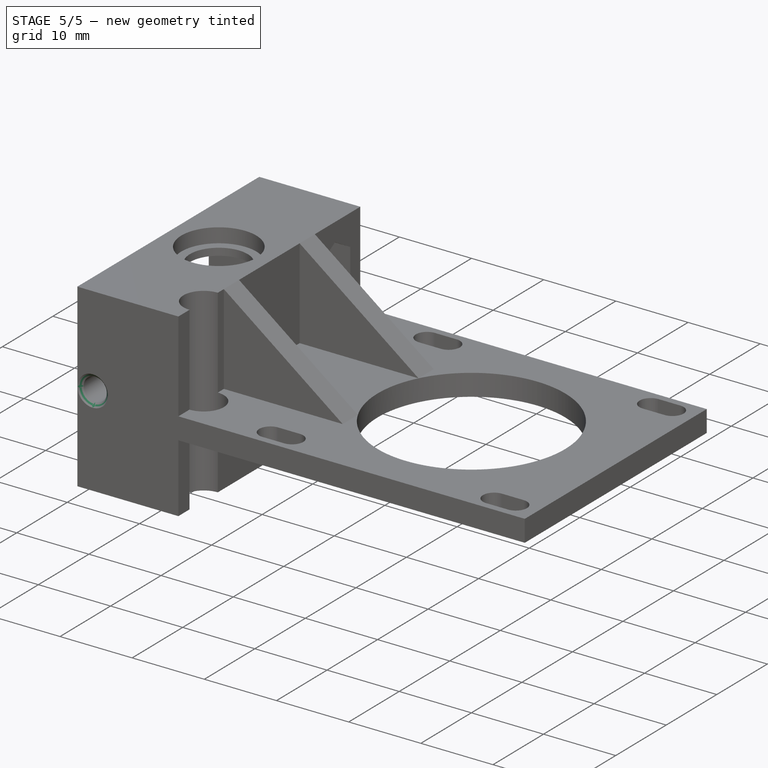
[diagram: stage 5 of 5 — iso view after this stage's code; geometry added in this stage tinted green]
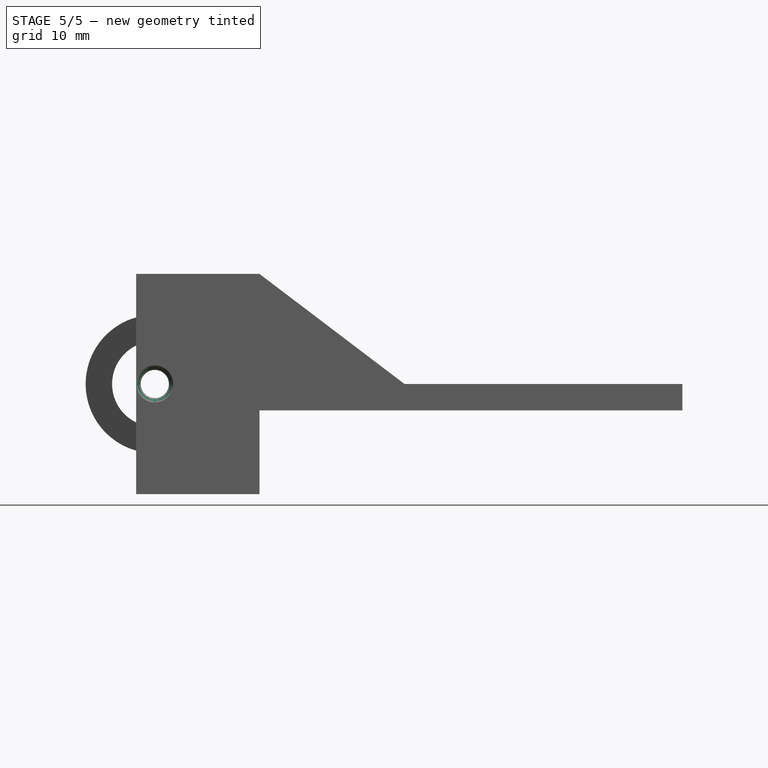
[diagram: stage 5 of 5 — front view after this stage's code; geometry added in this stage tinted green]
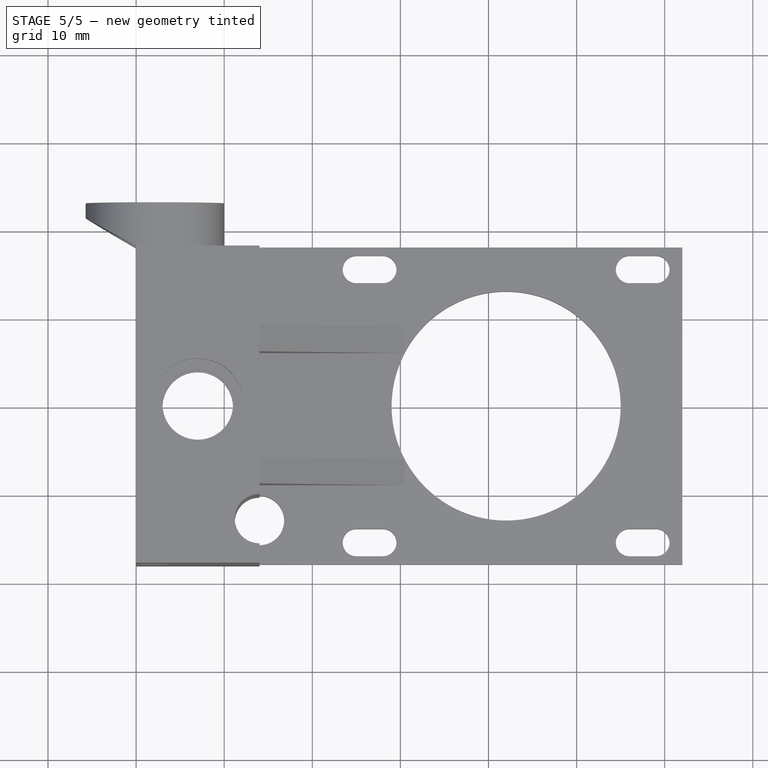
[diagram: stage 5 of 5 — top view after this stage's code; geometry added in this stage tinted green]
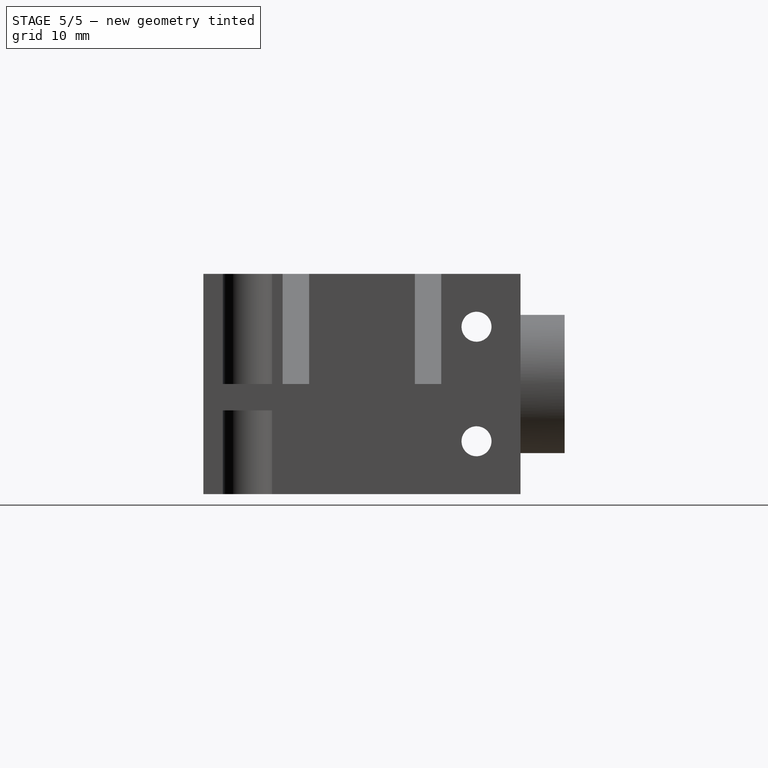
[diagram: stage 5 of 5 — right view after this stage's code; geometry added in this stage tinted green]
FEATURE [PartDesign::Chamfer] Chamfer  label="FilametRailChamfer1"
  Base = -> Pocket012 [Edge224,Edge231]
  BaseFeature = -> Pocket012
  Placement = pos=(0,0,0) rot=(0.57735,0.57735,0.57735;2.0944rad)
  Size = 0.58
FEATURE [PartDesign::Chamfer] Chamfer001  label="FilametRailChamfer2"
  Base = -> Chamfer [Edge13,Edge27]
  BaseFeature = -> Chamfer
  Placement = pos=(0,0,0) rot=(0.57735,0.57735,0.57735;2.0944rad)
  Size = 0.489
FEATURE [PartDesign::Chamfer] Chamfer002  label="FilametHoleChamfer1"
  Base = -> Chamfer001 [Edge137]
  BaseFeature = -> Chamfer001
  Placement = pos=(0,0,0) rot=(0.57735,0.57735,0.57735;2.0944rad)
  Size = 0.5
FEATURE [PartDesign::Chamfer] Chamfer003  label="FilametHoleChamfer2"
  Base = -> Chamfer002 [Edge33]
  BaseFeature = -> Chamfer002
  Placement = pos=(0,0,0) rot=(0.57735,0.57735,0.57735;2.0944rad)
  Size = 0.5
FEATURE [PartDesign::Body] Body  label="BaseBody"
  Group = -> [Sketch,Pad,Sketch001,Pocket,Sketch002,Pocket001,DatumPlane,Sketch003,Pocket002,DatumPlane001,Sketch004,Pocket003,DatumPlane002,Sketch005,Pocket004,DatumPlane003,Sketch006,Pocket005,Sketch007,Pocket006,DatumPlane004,Sketch008,Pocket007,DatumPlane005,Sketch009,Pad001,DatumPlane006,Sketch010,Pocket008,DatumPlane007,Sketch011,Pocket009,DatumPlane008,Sketch012,Pocket010,DatumPlane009,Sketch013,Pad002,+10 more]
  Origin = -> Origin
  Tip = -> Chamfer003
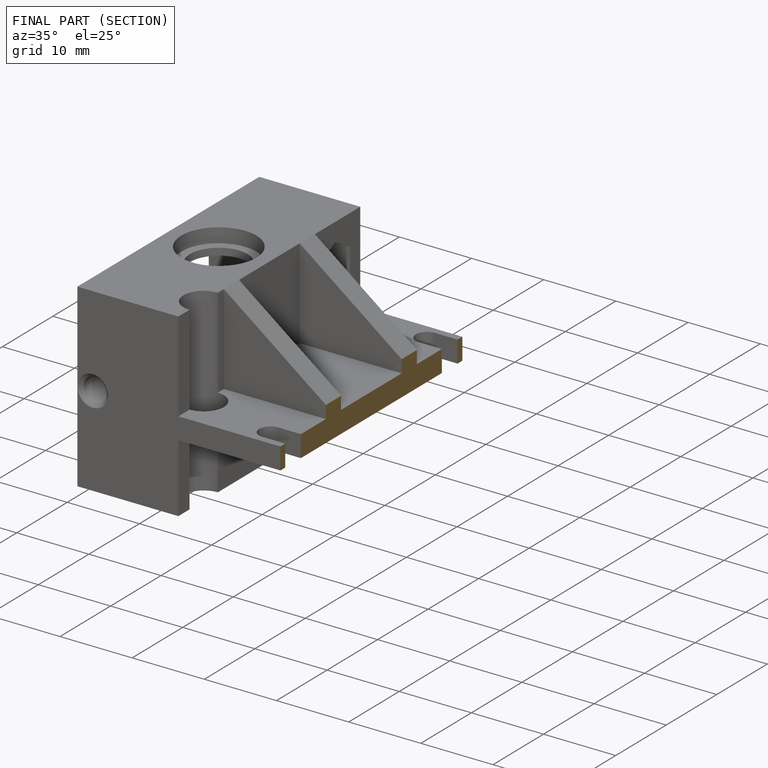
[diagram: finished part — half-section view (interior)]
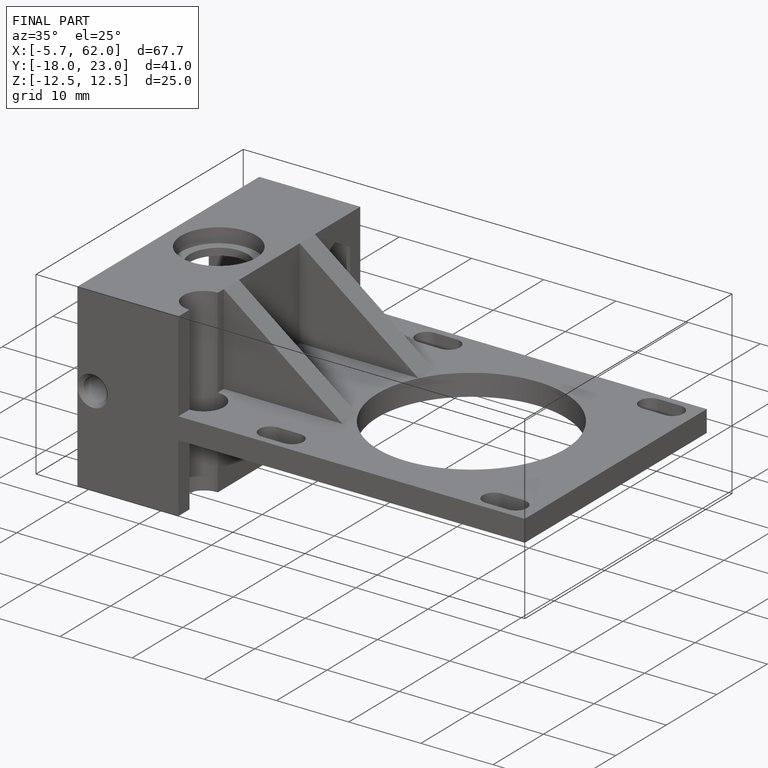
[diagram: finished part — iso view with bounding-box wireframe]
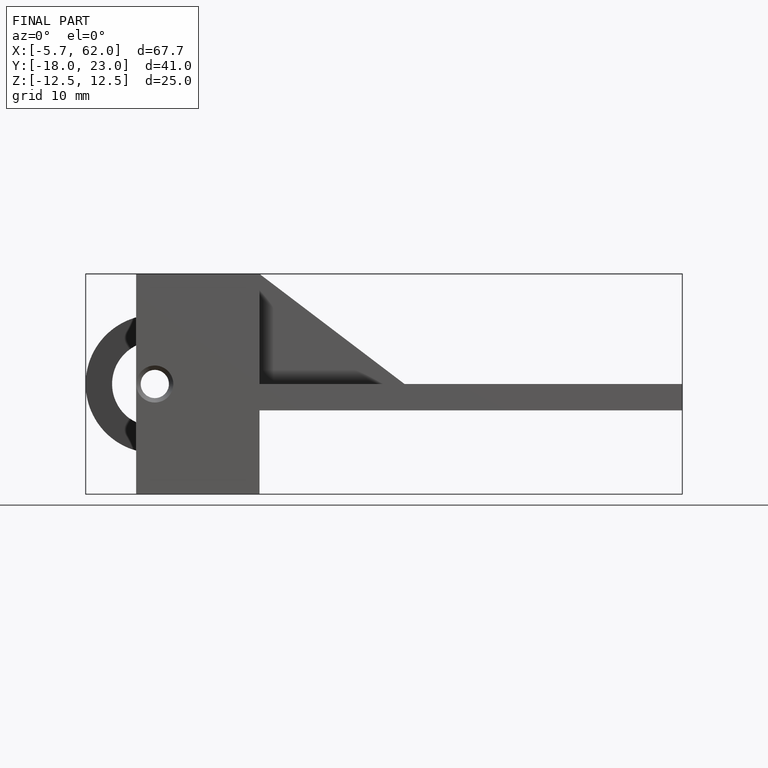
[diagram: finished part — front view with bounding-box wireframe]
